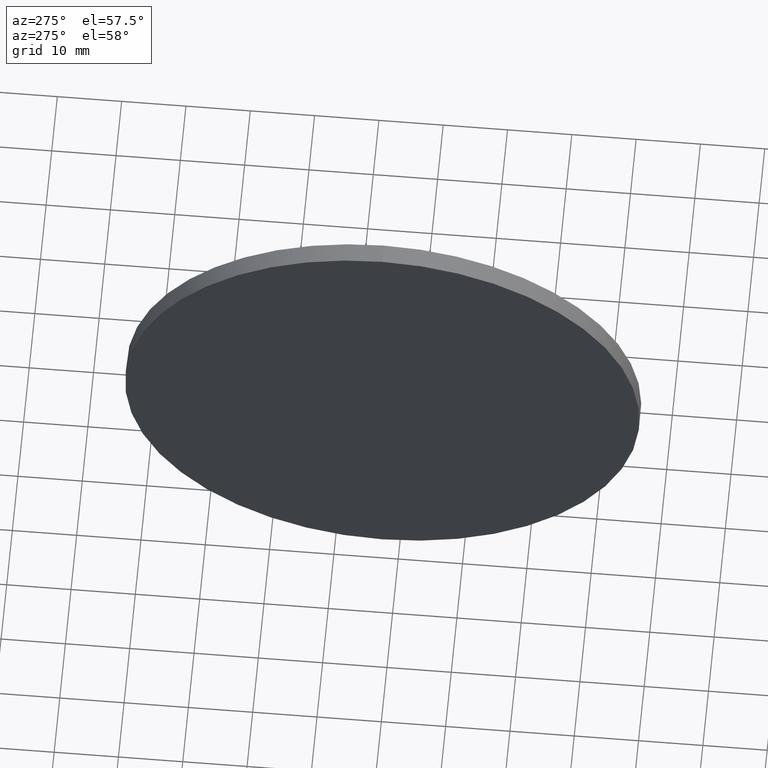
[diagram: clean part render]
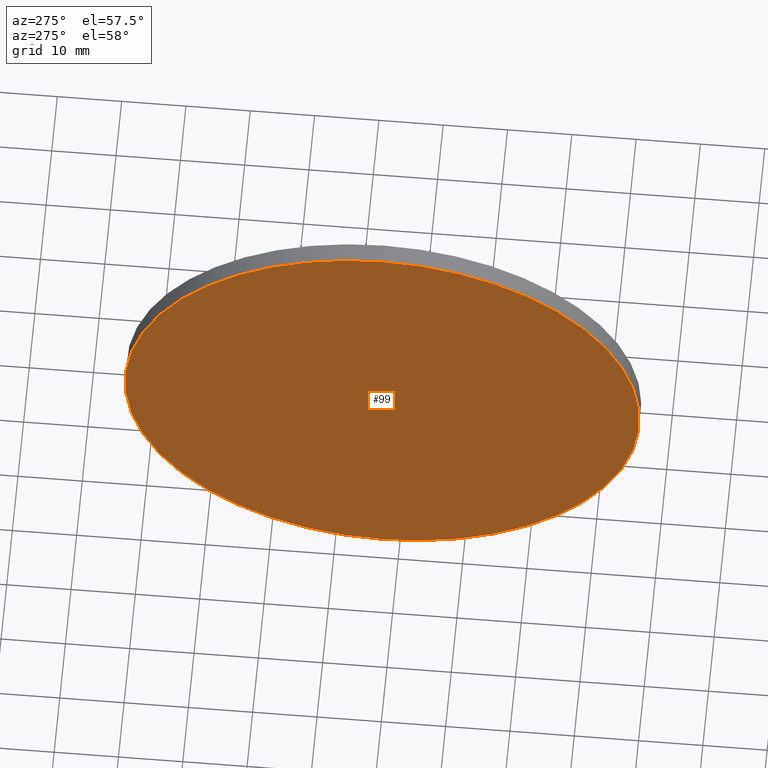
[diagram: same view with one face highlighted and labeled with its STEP entity id]
A machine part, auxiliary view. The second image highlights one B-rep face of the part: STEP entity #99.
In plain terms, the highlighted planar face has unit normal (1, 0, 0).
Its self-contained STEP definition (entity closure, byte-faithful):
#4 = VERTEX_POINT ( 'NONE', #88 ) ;
#9 = CARTESIAN_POINT ( 'NONE',  ( 462.3008761382651500, 32.67751769391771400, 0.0000000000000000000 ) ) ;
#13 = CIRCLE ( 'NONE', #140, 40.00000000000000000 ) ;
#22 = DIRECTION ( 'NONE',  ( 0.0000000000000000000, 0.0000000000000000000, 1.000000000000000000 ) ) ;
#24 = DIRECTION ( 'NONE',  ( -1.000000000000000000, -0.0000000000000000000, -0.0000000000000000000 ) ) ;
#26 = EDGE_CURVE ( 'NONE', #92, #4, #119, .T. ) ;
#31 = CARTESIAN_POINT ( 'NONE',  ( 462.3008761382651500, 32.67751769391771400, 40.00000000000000000 ) ) ;
#44 = FACE_OUTER_BOUND ( 'NONE', #100, .T. ) ;
#51 = EDGE_CURVE ( 'NONE', #4, #92, #13, .T. ) ;
#58 = DIRECTION ( 'NONE',  ( 0.0000000000000000000, 0.0000000000000000000, 1.000000000000000000 ) ) ;
#60 = PLANE ( 'NONE',  #182 ) ;
#62 = ORIENTED_EDGE ( 'NONE', *, *, #51, .T. ) ;
#64 = DIRECTION ( 'NONE',  ( 0.0000000000000000000, 0.0000000000000000000, -1.000000000000000000 ) ) ;
#69 = CARTESIAN_POINT ( 'NONE',  ( 462.3008761382651500, 32.67751769391771400, 0.0000000000000000000 ) ) ;
#72 = CARTESIAN_POINT ( 'NONE',  ( 462.3008761382651500, 32.67751769391771400, 0.0000000000000000000 ) ) ;
#88 = CARTESIAN_POINT ( 'NONE',  ( 462.3008761382651500, 32.67751769391772100, -40.00000000000000000 ) ) ;
#89 = ORIENTED_EDGE ( 'NONE', *, *, #26, .T. ) ;
#92 = VERTEX_POINT ( 'NONE', #31 ) ;
#99 = ADVANCED_FACE ( 'NONE', ( #44 ), #60, .F. ) ;
#100 = EDGE_LOOP ( 'NONE', ( #89, #62 ) ) ;
#116 = AXIS2_PLACEMENT_3D ( 'NONE', #9, #139, #22 ) ;
#119 = CIRCLE ( 'NONE', #116, 40.00000000000000000 ) ;
#131 = DIRECTION ( 'NONE',  ( 1.000000000000000000, 0.0000000000000000000, 0.0000000000000000000 ) ) ;
#139 = DIRECTION ( 'NONE',  ( -1.000000000000000000, -0.0000000000000000000, -0.0000000000000000000 ) ) ;
#140 = AXIS2_PLACEMENT_3D ( 'NONE', #69, #24, #58 ) ;
#182 = AXIS2_PLACEMENT_3D ( 'NONE', #72, #131, #64 ) ;